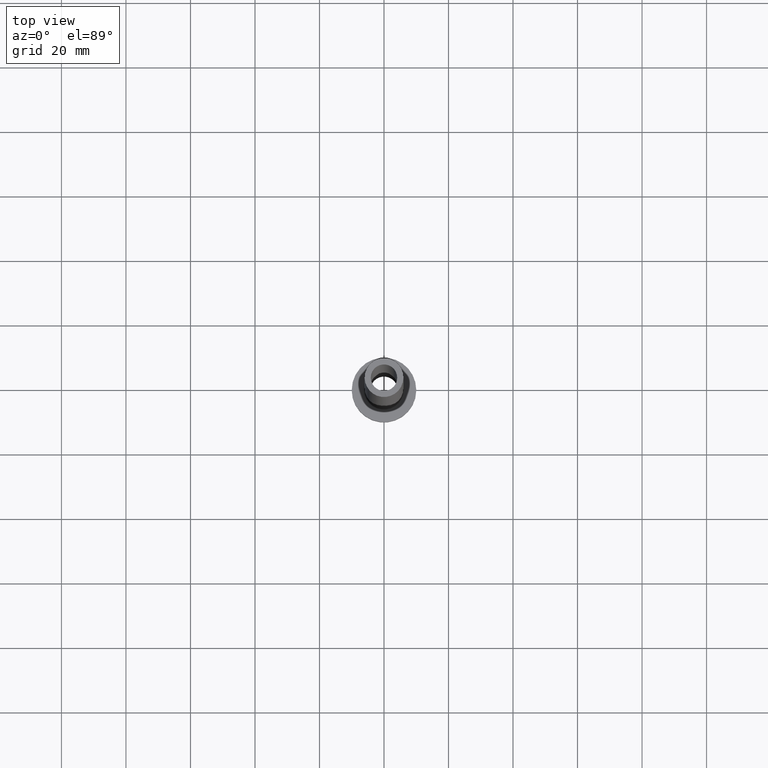
[diagram: clean part render]
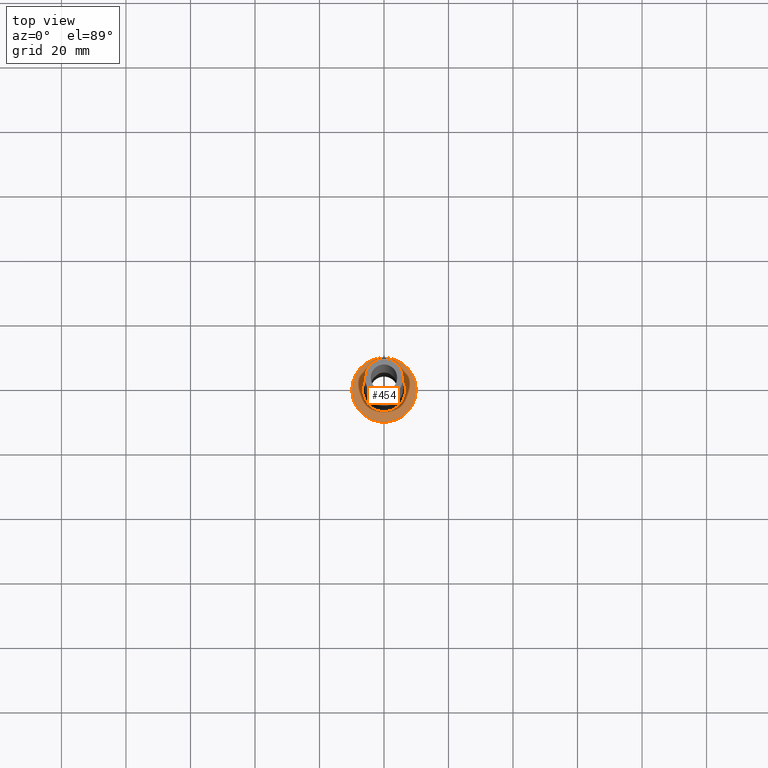
[diagram: same view with one face highlighted and labeled with its STEP entity id]
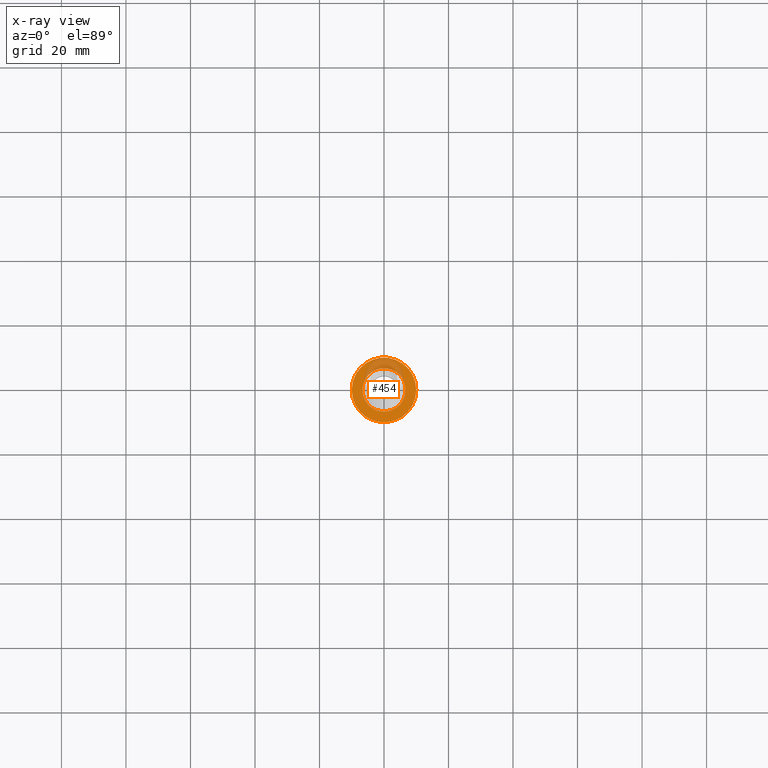
[diagram: x-ray of the same camera — body ghosted, the highlighted face saturated]
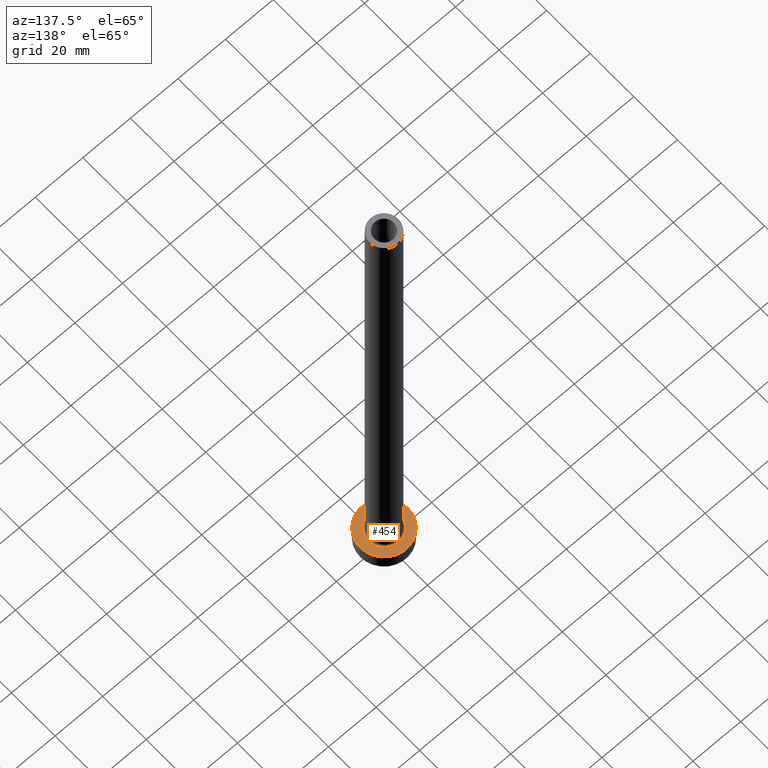
[diagram: same view with one face highlighted and labeled with its STEP entity id]
A machine part, top view. The second image highlights one B-rep face of the part: STEP entity #454.
The next image is the same camera in x-ray: the body ghosted, the highlighted face saturated — about 20% of this face is hidden behind the body in this view.
A second angle (auxiliary view) of the same face is appended — the face is thin or edge-on in the first view.
In plain terms, the highlighted planar face has unit normal (0, 0, 1).
Its self-contained STEP definition (entity closure, byte-faithful):
#6 = DIRECTION ( 'NONE',  ( 1.000000000000000000, 0.000000000000000000, 0.000000000000000000 ) ) ;
#17 = DIRECTION ( 'NONE',  ( -0.000000000000000000, -0.000000000000000000, -1.000000000000000000 ) ) ;
#34 = VERTEX_POINT ( 'NONE', #177 ) ;
#37 = CIRCLE ( 'NONE', #412, 10.00000000000000000 ) ;
#38 = VERTEX_POINT ( 'NONE', #119 ) ;
#44 = ORIENTED_EDGE ( 'NONE', *, *, #262, .T. ) ;
#45 = DIRECTION ( 'NONE',  ( -0.000000000000000000, -0.000000000000000000, -1.000000000000000000 ) ) ;
#54 = DIRECTION ( 'NONE',  ( 1.000000000000000000, 0.000000000000000000, 0.000000000000000000 ) ) ;
#88 = CARTESIAN_POINT ( 'NONE',  ( 6.700000000000001066, 0.000000000000000000, 7.000000000000006217 ) ) ;
#89 = PLANE ( 'NONE',  #233 ) ;
#91 = EDGE_CURVE ( 'NONE', #34, #311, #94, .T. ) ;
#93 = CARTESIAN_POINT ( 'NONE',  ( 0.000000000000000000, 0.000000000000000000, 7.000000000000000000 ) ) ;
#94 = CIRCLE ( 'NONE', #453, 10.00000000000000000 ) ;
#106 = ORIENTED_EDGE ( 'NONE', *, *, #436, .T. ) ;
#117 = FACE_BOUND ( 'NONE', #192, .T. ) ;
#119 = CARTESIAN_POINT ( 'NONE',  ( -6.700000000000001066, 8.205133554287267548E-16, 7.000000000000006217 ) ) ;
#121 = DIRECTION ( 'NONE',  ( 0.000000000000000000, 0.000000000000000000, 1.000000000000000000 ) ) ;
#131 = CARTESIAN_POINT ( 'NONE',  ( 0.000000000000000000, 0.000000000000000000, 7.000000000000000000 ) ) ;
#132 = CIRCLE ( 'NONE', #411, 6.700000000000001066 ) ;
#138 = DIRECTION ( 'NONE',  ( 1.000000000000000000, 0.000000000000000000, 0.000000000000000000 ) ) ;
#145 = CARTESIAN_POINT ( 'NONE',  ( 0.000000000000000000, 0.000000000000000000, 7.000000000000000000 ) ) ;
#177 = CARTESIAN_POINT ( 'NONE',  ( 10.00000000000000000, 1.224646799147353256E-15, 7.000000000000000000 ) ) ;
#183 = DIRECTION ( 'NONE',  ( 0.000000000000000000, 0.000000000000000000, 1.000000000000000000 ) ) ;
#192 = EDGE_LOOP ( 'NONE', ( #201, #44 ) ) ;
#201 = ORIENTED_EDGE ( 'NONE', *, *, #390, .T. ) ;
#210 = CARTESIAN_POINT ( 'NONE',  ( 0.000000000000000000, 0.000000000000000000, 7.000000000000000000 ) ) ;
#214 = CIRCLE ( 'NONE', #313, 6.700000000000001066 ) ;
#233 = AXIS2_PLACEMENT_3D ( 'NONE', #445, #183, #246 ) ;
#238 = CARTESIAN_POINT ( 'NONE',  ( -10.00000000000000000, 0.000000000000000000, 7.000000000000000000 ) ) ;
#246 = DIRECTION ( 'NONE',  ( 1.000000000000000000, 0.000000000000000000, -0.000000000000000000 ) ) ;
#262 = EDGE_CURVE ( 'NONE', #38, #430, #132, .T. ) ;
#302 = DIRECTION ( 'NONE',  ( 0.000000000000000000, 0.000000000000000000, 1.000000000000000000 ) ) ;
#311 = VERTEX_POINT ( 'NONE', #238 ) ;
#313 = AXIS2_PLACEMENT_3D ( 'NONE', #93, #17, #406 ) ;
#360 = FACE_OUTER_BOUND ( 'NONE', #393, .T. ) ;
#386 = ORIENTED_EDGE ( 'NONE', *, *, #91, .T. ) ;
#390 = EDGE_CURVE ( 'NONE', #430, #38, #214, .T. ) ;
#393 = EDGE_LOOP ( 'NONE', ( #106, #386 ) ) ;
#406 = DIRECTION ( 'NONE',  ( 1.000000000000000000, 0.000000000000000000, 0.000000000000000000 ) ) ;
#411 = AXIS2_PLACEMENT_3D ( 'NONE', #145, #45, #6 ) ;
#412 = AXIS2_PLACEMENT_3D ( 'NONE', #210, #121, #54 ) ;
#430 = VERTEX_POINT ( 'NONE', #88 ) ;
#436 = EDGE_CURVE ( 'NONE', #311, #34, #37, .T. ) ;
#445 = CARTESIAN_POINT ( 'NONE',  ( 0.000000000000000000, 0.000000000000000000, 7.000000000000000000 ) ) ;
#453 = AXIS2_PLACEMENT_3D ( 'NONE', #131, #302, #138 ) ;
#454 = ADVANCED_FACE ( 'NONE', ( #117, #360 ), #89, .T. ) ;